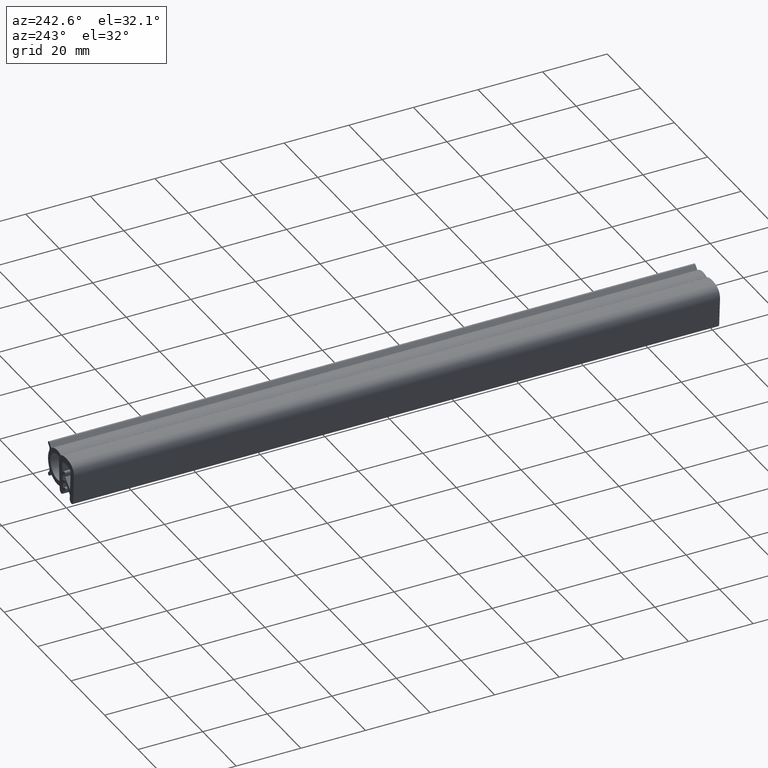
[diagram: clean part render]
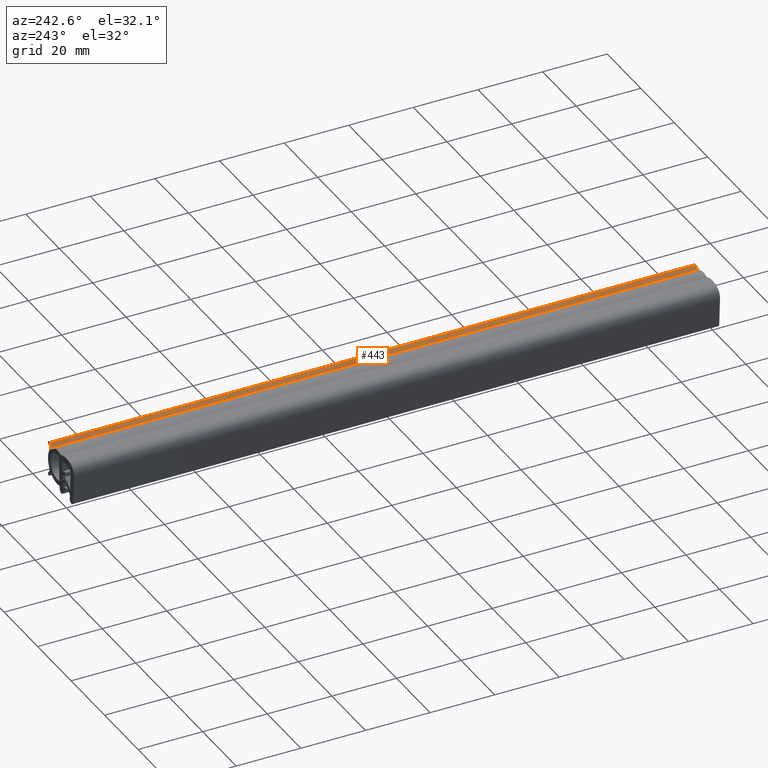
[diagram: same view with one face highlighted and labeled with its STEP entity id]
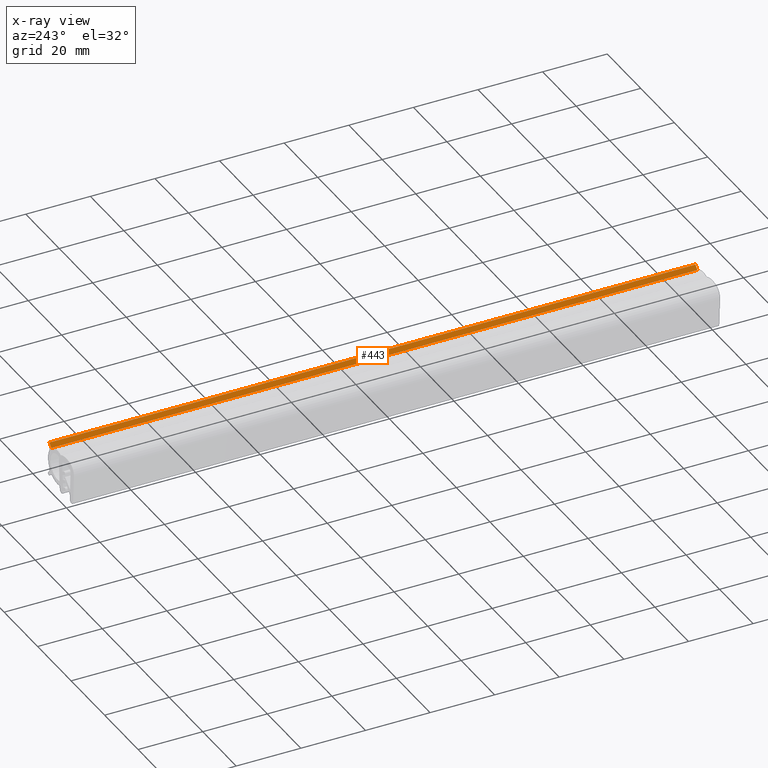
[diagram: x-ray of the same camera — body ghosted, the highlighted face saturated]
A machine part, auxiliary view. The second image highlights one B-rep face of the part: STEP entity #443.
The next image is the same camera in x-ray: the body ghosted, the highlighted face saturated — about 0% of this face is hidden behind the body in this view.
In plain terms, the highlighted face is a freeform B-spline surface patch.
Its self-contained STEP definition (entity closure, byte-faithful):
#49=CARTESIAN_POINT('',(9.019435114119011,0.0,-1.619458104701335));
#50=VERTEX_POINT('',#49);
#207=CARTESIAN_POINT('',(10.146446609405000,0.0,-0.492446609405378));
#208=VERTEX_POINT('',#207);
#226=CARTESIAN_POINT('',(10.146446609405000,0.0,-0.492446609405378));
#227=CARTESIAN_POINT('',(9.019435114119011,0.0,-1.619458104701335));
#228=QUASI_UNIFORM_CURVE('',1,(#226,#227),.UNSPECIFIED.,.F.,.U.);
#229=EDGE_CURVE('',#208,#50,#228,.T.);
#239=CARTESIAN_POINT('',(9.019435114119011,200.0,-1.619458104701335));
#240=VERTEX_POINT('',#239);
#256=CARTESIAN_POINT('',(10.146446609405000,200.0,-0.492446609405378));
#257=VERTEX_POINT('',#256);
#258=CARTESIAN_POINT('',(10.146446609405000,200.0,-0.492446609405378));
#259=CARTESIAN_POINT('',(9.019435114119011,200.0,-1.619458104701335));
#260=QUASI_UNIFORM_CURVE('',1,(#258,#259),.UNSPECIFIED.,.F.,.U.);
#261=EDGE_CURVE('',#257,#240,#260,.T.);
#424=CARTESIAN_POINT('',(8.963140819556561,-9.989999612361183,-1.675752399264100));
#425=CARTESIAN_POINT('',(10.202740611757360,-9.989999612361183,-0.436152607056061));
#426=CARTESIAN_POINT('',(8.963140819556561,209.990004976779200,-1.675752399264100));
#427=CARTESIAN_POINT('',(10.202740611757360,209.990004976779200,-0.436152607056061));
#428=B_SPLINE_SURFACE_WITH_KNOTS('',1,1,((#424,#426),(#425,#427)),.UNSPECIFIED.,.F.,.F.,.U.,(2,2),(2,2),(0.041708281298354,0.958291502634808),(0.0,219.980004589140410),.UNSPECIFIED.);
#429=ORIENTED_EDGE('',*,*,#229,.F.);
#430=CARTESIAN_POINT('',(10.146446609405000,200.0,-0.492446609405378));
#431=CARTESIAN_POINT('',(10.146446609405000,0.0,-0.492446609405378));
#432=QUASI_UNIFORM_CURVE('',1,(#430,#431),.UNSPECIFIED.,.F.,.U.);
#433=EDGE_CURVE('',#257,#208,#432,.T.);
#434=ORIENTED_EDGE('',*,*,#433,.F.);
#435=ORIENTED_EDGE('',*,*,#261,.T.);
#436=CARTESIAN_POINT('',(9.019435114119011,200.0,-1.619458104701335));
#437=CARTESIAN_POINT('',(9.019435114119011,0.0,-1.619458104701335));
#438=QUASI_UNIFORM_CURVE('',1,(#436,#437),.UNSPECIFIED.,.F.,.U.);
#439=EDGE_CURVE('',#240,#50,#438,.T.);
#440=ORIENTED_EDGE('',*,*,#439,.T.);
#441=EDGE_LOOP('',(#429,#434,#435,#440));
#442=FACE_OUTER_BOUND('',#441,.T.);
#443=ADVANCED_FACE('',(#442),#428,.T.);